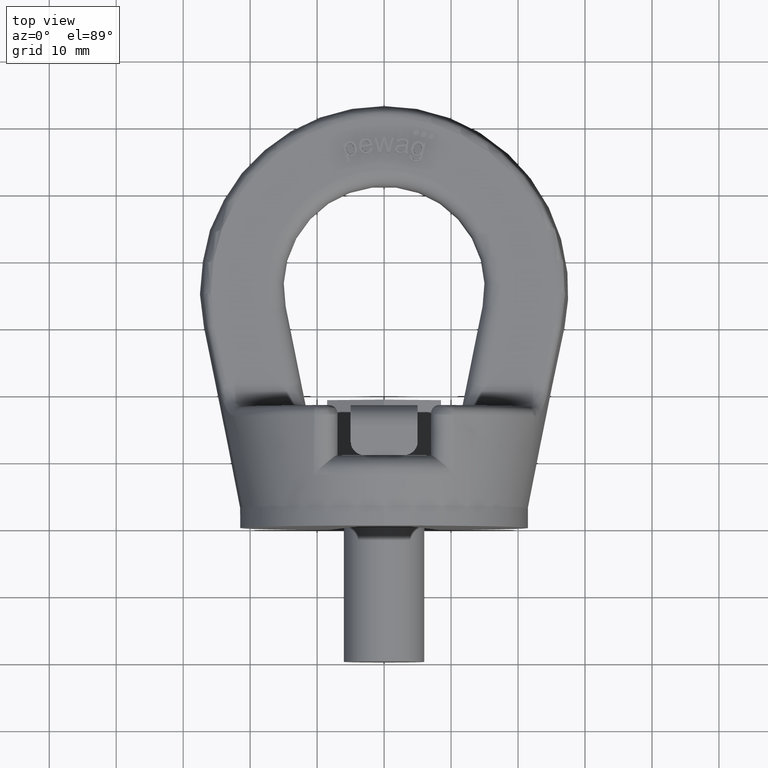
[diagram: clean part render]
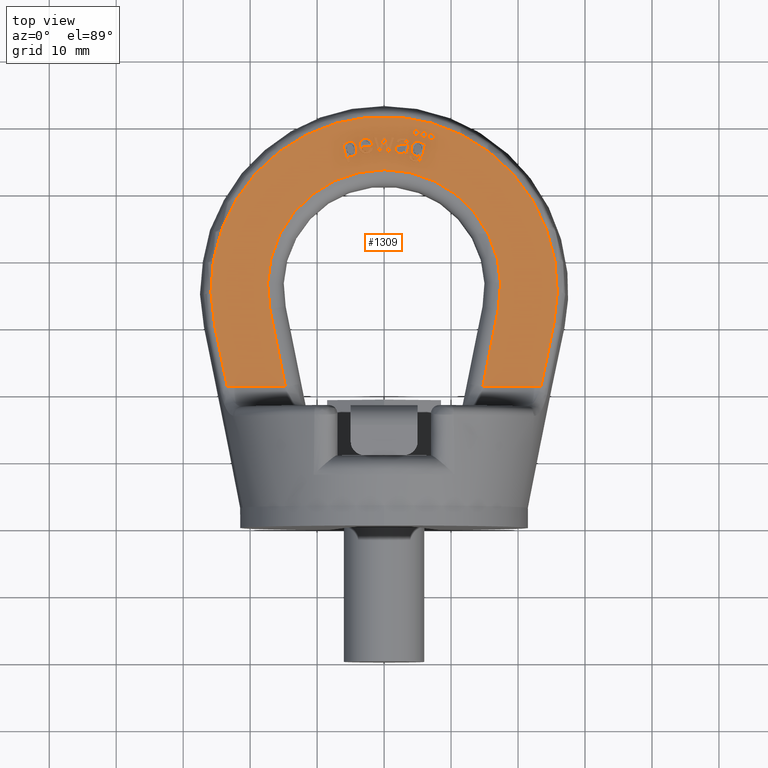
[diagram: same view with one face highlighted and labeled with its STEP entity id]
A machine part, top view. The second image highlights one B-rep face of the part: STEP entity #1309.
In plain terms, the highlighted planar face has unit normal (0, -0, -1).
Its self-contained STEP definition (entity closure, byte-faithful):
#1309=ADVANCED_FACE('',(#1756,#1757,#1758,#1759,#1760,#1761,#1762,#1763,
#1764),#1548,.F.);
#1548=PLANE('',#5122);
#1666=CIRCLE('',#5117,0.45);
#1667=CIRCLE('',#5118,0.45);
#1668=CIRCLE('',#5119,0.45);
#1669=CIRCLE('',#5120,17.4);
#1670=CIRCLE('',#5121,25.8582675367087);
#1756=FACE_BOUND('',#1812,.T.);
#1757=FACE_BOUND('',#1813,.T.);
#1758=FACE_BOUND('',#1814,.T.);
#1759=FACE_BOUND('',#1815,.T.);
#1760=FACE_BOUND('',#1816,.T.);
#1761=FACE_BOUND('',#1817,.T.);
#1762=FACE_BOUND('',#1818,.T.);
#1763=FACE_BOUND('',#1819,.T.);
#1764=FACE_BOUND('',#1820,.T.);
#1812=EDGE_LOOP('',(#2702,#2703,#2704,#2705,#2706,#2707,#2708));
#1813=EDGE_LOOP('',(#2709,#2710,#2711,#2712,#2713,#2714,#2715,#2716,#2717,
#2718,#2719,#2720,#2721,#2722,#2723));
#1814=EDGE_LOOP('',(#2724,#2725,#2726,#2727,#2728));
#1815=EDGE_LOOP('',(#2729));
#1816=EDGE_LOOP('',(#2730));
#1817=EDGE_LOOP('',(#2731));
#1818=EDGE_LOOP('',(#2732,#2733,#2734,#2735,#2736,#2737,#2738,#2739));
#1819=EDGE_LOOP('',(#2740,#2741,#2742,#2743,#2744,#2745));
#1820=EDGE_LOOP('',(#2746,#2747,#2748,#2749,#2750,#2751,#2752,#2753,#2754));
#2086=LINE('',#6270,#2366);
#2087=LINE('',#6302,#2367);
#2088=LINE('',#6304,#2368);
#2089=LINE('',#6305,#2369);
#2090=LINE('',#6308,#2370);
#2091=LINE('',#6310,#2371);
#2092=LINE('',#6312,#2372);
#2093=LINE('',#6326,#2373);
#2094=LINE('',#6328,#2374);
#2095=LINE('',#6344,#2375);
#2096=LINE('',#6346,#2376);
#2097=LINE('',#6348,#2377);
#2098=LINE('',#6350,#2378);
#2099=LINE('',#6352,#2379);
#2100=LINE('',#6368,#2380);
#2101=LINE('',#6391,#2381);
#2102=LINE('',#6401,#2382);
#2103=LINE('',#6403,#2383);
#2104=LINE('',#6417,#2384);
#2105=LINE('',#6419,#2385);
#2106=LINE('',#6420,#2386);
#2107=LINE('',#6423,#2387);
#2108=LINE('',#6425,#2388);
#2109=LINE('',#6427,#2389);
#2110=LINE('',#6429,#2390);
#2111=LINE('',#6453,#2391);
#2112=LINE('',#6498,#2392);
#2366=VECTOR('',#5384,1.);
#2367=VECTOR('',#5385,1.);
#2368=VECTOR('',#5386,1.);
#2369=VECTOR('',#5387,1.);
#2370=VECTOR('',#5388,1.);
#2371=VECTOR('',#5389,1.);
#2372=VECTOR('',#5390,1.);
#2373=VECTOR('',#5391,1.);
#2374=VECTOR('',#5392,1.);
#2375=VECTOR('',#5393,1.);
#2376=VECTOR('',#5394,1.);
#2377=VECTOR('',#5395,1.);
#2378=VECTOR('',#5396,1.);
#2379=VECTOR('',#5397,1.);
#2380=VECTOR('',#5398,1.);
#2381=VECTOR('',#5399,1.);
#2382=VECTOR('',#5408,1.);
#2383=VECTOR('',#5409,1.);
#2384=VECTOR('',#5412,1.);
#2385=VECTOR('',#5413,1.);
#2386=VECTOR('',#5414,1.);
#2387=VECTOR('',#5415,1.);
#2388=VECTOR('',#5416,1.);
#2389=VECTOR('',#5417,1.);
#2390=VECTOR('',#5418,1.);
#2391=VECTOR('',#5419,1.);
#2392=VECTOR('',#5420,1.);
#2702=ORIENTED_EDGE('',*,*,#4266,.T.);
#2703=ORIENTED_EDGE('',*,*,#4267,.T.);
#2704=ORIENTED_EDGE('',*,*,#4268,.T.);
#2705=ORIENTED_EDGE('',*,*,#4269,.T.);
#2706=ORIENTED_EDGE('',*,*,#4270,.T.);
#2707=ORIENTED_EDGE('',*,*,#4271,.T.);
#2708=ORIENTED_EDGE('',*,*,#4272,.T.);
#2709=ORIENTED_EDGE('',*,*,#4273,.T.);
#2710=ORIENTED_EDGE('',*,*,#4274,.T.);
#2711=ORIENTED_EDGE('',*,*,#4275,.T.);
#2712=ORIENTED_EDGE('',*,*,#4276,.T.);
#2713=ORIENTED_EDGE('',*,*,#4277,.T.);
#2714=ORIENTED_EDGE('',*,*,#4278,.T.);
#2715=ORIENTED_EDGE('',*,*,#4279,.T.);
#2716=ORIENTED_EDGE('',*,*,#4280,.T.);
#2717=ORIENTED_EDGE('',*,*,#4281,.T.);
#2718=ORIENTED_EDGE('',*,*,#4282,.T.);
#2719=ORIENTED_EDGE('',*,*,#4283,.T.);
#2720=ORIENTED_EDGE('',*,*,#4284,.T.);
#2721=ORIENTED_EDGE('',*,*,#4285,.T.);
#2722=ORIENTED_EDGE('',*,*,#4286,.T.);
#2723=ORIENTED_EDGE('',*,*,#4287,.T.);
#2724=ORIENTED_EDGE('',*,*,#4288,.T.);
#2725=ORIENTED_EDGE('',*,*,#4289,.T.);
#2726=ORIENTED_EDGE('',*,*,#4290,.T.);
#2727=ORIENTED_EDGE('',*,*,#4291,.T.);
#2728=ORIENTED_EDGE('',*,*,#4292,.T.);
#2729=ORIENTED_EDGE('',*,*,#4293,.F.);
#2730=ORIENTED_EDGE('',*,*,#4294,.F.);
#2731=ORIENTED_EDGE('',*,*,#4295,.F.);
#2732=ORIENTED_EDGE('',*,*,#4296,.T.);
#2733=ORIENTED_EDGE('',*,*,#4297,.T.);
#2734=ORIENTED_EDGE('',*,*,#4298,.T.);
#2735=ORIENTED_EDGE('',*,*,#4299,.T.);
#2736=ORIENTED_EDGE('',*,*,#4300,.T.);
#2737=ORIENTED_EDGE('',*,*,#4301,.T.);
#2738=ORIENTED_EDGE('',*,*,#4302,.T.);
#2739=ORIENTED_EDGE('',*,*,#4303,.T.);
#2740=ORIENTED_EDGE('',*,*,#4304,.T.);
#2741=ORIENTED_EDGE('',*,*,#4305,.T.);
#2742=ORIENTED_EDGE('',*,*,#4306,.T.);
#2743=ORIENTED_EDGE('',*,*,#4307,.T.);
#2744=ORIENTED_EDGE('',*,*,#4308,.T.);
#2745=ORIENTED_EDGE('',*,*,#4309,.T.);
#2746=ORIENTED_EDGE('',*,*,#4310,.T.);
#2747=ORIENTED_EDGE('',*,*,#4311,.T.);
#2748=ORIENTED_EDGE('',*,*,#4312,.T.);
#2749=ORIENTED_EDGE('',*,*,#4313,.T.);
#2750=ORIENTED_EDGE('',*,*,#4314,.T.);
#2751=ORIENTED_EDGE('',*,*,#4315,.T.);
#2752=ORIENTED_EDGE('',*,*,#4316,.T.);
#2753=ORIENTED_EDGE('',*,*,#4317,.T.);
#2754=ORIENTED_EDGE('',*,*,#4318,.T.);
#3878=VERTEX_POINT('',#6263);
#3879=VERTEX_POINT('',#6264);
#3880=VERTEX_POINT('',#6269);
#3881=VERTEX_POINT('',#6271);
#3882=VERTEX_POINT('',#6284);
#3883=VERTEX_POINT('',#6301);
#3884=VERTEX_POINT('',#6303);
#3885=VERTEX_POINT('',#6306);
#3886=VERTEX_POINT('',#6307);
#3887=VERTEX_POINT('',#6309);
#3888=VERTEX_POINT('',#6311);
#3889=VERTEX_POINT('',#6313);
#3890=VERTEX_POINT('',#6320);
#3891=VERTEX_POINT('',#6325);
#3892=VERTEX_POINT('',#6327);
#3893=VERTEX_POINT('',#6329);
#3894=VERTEX_POINT('',#6336);
#3895=VERTEX_POINT('',#6343);
#3896=VERTEX_POINT('',#6345);
#3897=VERTEX_POINT('',#6347);
#3898=VERTEX_POINT('',#6349);
#3899=VERTEX_POINT('',#6351);
#3900=VERTEX_POINT('',#6361);
#3901=VERTEX_POINT('',#6362);
#3902=VERTEX_POINT('',#6367);
#3903=VERTEX_POINT('',#6369);
#3904=VERTEX_POINT('',#6390);
#3905=VERTEX_POINT('',#6393);
#3906=VERTEX_POINT('',#6395);
#3907=VERTEX_POINT('',#6397);
#3908=VERTEX_POINT('',#6399);
#3909=VERTEX_POINT('',#6400);
#3910=VERTEX_POINT('',#6402);
#3911=VERTEX_POINT('',#6404);
#3912=VERTEX_POINT('',#6409);
#3913=VERTEX_POINT('',#6411);
#3914=VERTEX_POINT('',#6416);
#3915=VERTEX_POINT('',#6418);
#3916=VERTEX_POINT('',#6421);
#3917=VERTEX_POINT('',#6422);
#3918=VERTEX_POINT('',#6424);
#3919=VERTEX_POINT('',#6426);
#3920=VERTEX_POINT('',#6428);
#3921=VERTEX_POINT('',#6430);
#3922=VERTEX_POINT('',#6454);
#3923=VERTEX_POINT('',#6455);
#3924=VERTEX_POINT('',#6460);
#3925=VERTEX_POINT('',#6477);
#3926=VERTEX_POINT('',#6484);
#3927=VERTEX_POINT('',#6497);
#3928=VERTEX_POINT('',#6499);
#3929=VERTEX_POINT('',#6504);
#3930=VERTEX_POINT('',#6517);
#4266=EDGE_CURVE('',#3878,#3879,#4854,.T.);
#4267=EDGE_CURVE('',#3879,#3880,#4855,.T.);
#4268=EDGE_CURVE('',#3880,#3881,#2086,.T.);
#4269=EDGE_CURVE('',#3881,#3882,#4856,.T.);
#4270=EDGE_CURVE('',#3882,#3883,#4857,.T.);
#4271=EDGE_CURVE('',#3883,#3884,#2087,.T.);
#4272=EDGE_CURVE('',#3884,#3878,#2088,.T.);
#4273=EDGE_CURVE('',#3885,#3886,#2089,.T.);
#4274=EDGE_CURVE('',#3886,#3887,#2090,.T.);
#4275=EDGE_CURVE('',#3887,#3888,#2091,.T.);
#4276=EDGE_CURVE('',#3888,#3889,#2092,.T.);
#4277=EDGE_CURVE('',#3889,#3890,#4858,.T.);
#4278=EDGE_CURVE('',#3890,#3891,#4859,.T.);
#4279=EDGE_CURVE('',#3891,#3892,#2093,.T.);
#4280=EDGE_CURVE('',#3892,#3893,#2094,.T.);
#4281=EDGE_CURVE('',#3893,#3894,#4860,.T.);
#4282=EDGE_CURVE('',#3894,#3895,#4861,.T.);
#4283=EDGE_CURVE('',#3895,#3896,#2095,.T.);
#4284=EDGE_CURVE('',#3896,#3897,#2096,.T.);
#4285=EDGE_CURVE('',#3897,#3898,#2097,.T.);
#4286=EDGE_CURVE('',#3898,#3899,#2098,.T.);
#4287=EDGE_CURVE('',#3899,#3885,#2099,.T.);
#4288=EDGE_CURVE('',#3900,#3901,#4862,.T.);
#4289=EDGE_CURVE('',#3901,#3902,#4863,.T.);
#4290=EDGE_CURVE('',#3902,#3903,#2100,.T.);
#4291=EDGE_CURVE('',#3903,#3904,#4864,.T.);
#4292=EDGE_CURVE('',#3904,#3900,#2101,.T.);
#4293=EDGE_CURVE('',#3905,#3905,#1666,.T.);
#4294=EDGE_CURVE('',#3906,#3906,#1667,.T.);
#4295=EDGE_CURVE('',#3907,#3907,#1668,.T.);
#4296=EDGE_CURVE('',#3908,#3909,#1669,.T.);
#4297=EDGE_CURVE('',#3909,#3910,#2102,.T.);
#4298=EDGE_CURVE('',#3910,#3911,#2103,.T.);
#4299=EDGE_CURVE('',#3911,#3912,#4865,.T.);
#4300=EDGE_CURVE('',#3912,#3913,#1670,.T.);
#4301=EDGE_CURVE('',#3913,#3914,#4866,.T.);
#4302=EDGE_CURVE('',#3914,#3915,#2104,.T.);
#4303=EDGE_CURVE('',#3915,#3908,#2105,.T.);
#4304=EDGE_CURVE('',#3916,#3917,#2106,.T.);
#4305=EDGE_CURVE('',#3917,#3918,#2107,.T.);
#4306=EDGE_CURVE('',#3918,#3919,#2108,.T.);
#4307=EDGE_CURVE('',#3919,#3920,#2109,.T.);
#4308=EDGE_CURVE('',#3920,#3921,#2110,.T.);
#4309=EDGE_CURVE('',#3921,#3916,#4867,.T.);
#4310=EDGE_CURVE('',#3922,#3923,#2111,.T.);
#4311=EDGE_CURVE('',#3923,#3924,#4868,.T.);
#4312=EDGE_CURVE('',#3924,#3925,#4869,.T.);
#4313=EDGE_CURVE('',#3925,#3926,#4870,.T.);
#4314=EDGE_CURVE('',#3926,#3927,#4871,.T.);
#4315=EDGE_CURVE('',#3927,#3928,#2112,.T.);
#4316=EDGE_CURVE('',#3928,#3929,#4872,.T.);
#4317=EDGE_CURVE('',#3929,#3930,#4873,.T.);
#4318=EDGE_CURVE('',#3930,#3922,#4874,.T.);
#4854=B_SPLINE_CURVE_WITH_KNOTS('',3,(#6251,#6252,#6253,#6254,#6255,#6256,
#6257,#6258,#6259,#6260,#6261,#6262),.UNSPECIFIED.,.F.,.F.,(4,2,2,2,2,4),
(0.,0.305645754892092,0.470829306249214,0.636012857606336,0.802206343843957,
1.),.UNSPECIFIED.);
#4855=B_SPLINE_CURVE_WITH_KNOTS('',3,(#6265,#6266,#6267,#6268),
 .UNSPECIFIED.,.F.,.F.,(4,4),(0.,1.),.UNSPECIFIED.);
#4856=B_SPLINE_CURVE_WITH_KNOTS('',3,(#6272,#6273,#6274,#6275,#6276,#6277,
#6278,#6279,#6280,#6281,#6282,#6283),.UNSPECIFIED.,.F.,.F.,(4,2,2,2,2,4),
(0.,0.163304651309289,0.382303784248535,0.619375661168201,0.856447538087868,
1.),.UNSPECIFIED.);
#4857=B_SPLINE_CURVE_WITH_KNOTS('',3,(#6285,#6286,#6287,#6288,#6289,#6290,
#6291,#6292,#6293,#6294,#6295,#6296,#6297,#6298,#6299,#6300),
 .UNSPECIFIED.,.F.,.F.,(4,2,2,2,2,2,2,4),(0.,0.139503666745452,0.312880428291713,
0.486257189837975,0.605370995480445,0.723854105689066,0.842337215897688,
1.),.UNSPECIFIED.);
#4858=B_SPLINE_CURVE_WITH_KNOTS('',3,(#6314,#6315,#6316,#6317,#6318,#6319),
 .UNSPECIFIED.,.F.,.F.,(4,2,4),(0.,0.728909607654982,1.),.UNSPECIFIED.);
#4859=B_SPLINE_CURVE_WITH_KNOTS('',3,(#6321,#6322,#6323,#6324),
 .UNSPECIFIED.,.F.,.F.,(4,4),(0.,1.),.UNSPECIFIED.);
#4860=B_SPLINE_CURVE_WITH_KNOTS('',3,(#6330,#6331,#6332,#6333,#6334,#6335),
 .UNSPECIFIED.,.F.,.F.,(4,2,4),(0.,0.752082276025114,1.),.UNSPECIFIED.);
#4861=B_SPLINE_CURVE_WITH_KNOTS('',3,(#6337,#6338,#6339,#6340,#6341,#6342),
 .UNSPECIFIED.,.F.,.F.,(4,2,4),(0.,0.250451922487264,1.),.UNSPECIFIED.);
#4862=B_SPLINE_CURVE_WITH_KNOTS('',3,(#6353,#6354,#6355,#6356,#6357,#6358,
#6359,#6360),.UNSPECIFIED.,.F.,.F.,(4,2,2,4),(0.,0.363477968613209,0.728087675912439,
1.),.UNSPECIFIED.);
#4863=B_SPLINE_CURVE_WITH_KNOTS('',3,(#6363,#6364,#6365,#6366),
 .UNSPECIFIED.,.F.,.F.,(4,4),(0.,1.),.UNSPECIFIED.);
#4864=B_SPLINE_CURVE_WITH_KNOTS('',3,(#6370,#6371,#6372,#6373,#6374,#6375,
#6376,#6377,#6378,#6379,#6380,#6381,#6382,#6383,#6384,#6385,#6386,#6387,
#6388,#6389),.UNSPECIFIED.,.F.,.F.,(4,2,2,2,2,2,2,2,2,4),(0.,0.10292120312204,
0.206156274885327,0.336063021724233,0.465707475917735,0.599570296299742,
0.73343311668175,0.862845255056171,0.992257393430589,1.),.UNSPECIFIED.);
#4865=B_SPLINE_CURVE_WITH_KNOTS('',3,(#6405,#6406,#6407,#6408),
 .UNSPECIFIED.,.F.,.F.,(4,4),(0.,1.),.UNSPECIFIED.);
#4866=B_SPLINE_CURVE_WITH_KNOTS('',3,(#6412,#6413,#6414,#6415),
 .UNSPECIFIED.,.F.,.F.,(4,4),(0.,1.),.UNSPECIFIED.);
#4867=B_SPLINE_CURVE_WITH_KNOTS('',3,(#6431,#6432,#6433,#6434,#6435,#6436,
#6437,#6438,#6439,#6440,#6441,#6442,#6443,#6444,#6445,#6446,#6447,#6448,
#6449,#6450,#6451,#6452),.UNSPECIFIED.,.F.,.F.,(4,2,2,2,2,2,2,2,2,2,4),
(0.,0.0830854503763804,0.165678296755062,0.273272220956482,0.380460889370505,
0.487248686046665,0.601946689884026,0.717055250849185,0.831909514623418,
0.915821305508701,1.),.UNSPECIFIED.);
#4868=B_SPLINE_CURVE_WITH_KNOTS('',3,(#6456,#6457,#6458,#6459),
 .UNSPECIFIED.,.F.,.F.,(4,4),(0.,1.),.UNSPECIFIED.);
#4869=B_SPLINE_CURVE_WITH_KNOTS('',3,(#6461,#6462,#6463,#6464,#6465,#6466,
#6467,#6468,#6469,#6470,#6471,#6472,#6473,#6474,#6475,#6476),
 .UNSPECIFIED.,.F.,.F.,(4,2,2,2,2,2,2,4),(0.,0.121639465164569,0.243930904991202,
0.445161792748253,0.646392680505297,0.763565096161289,0.881519242448378,
1.),.UNSPECIFIED.);
#4870=B_SPLINE_CURVE_WITH_KNOTS('',3,(#6478,#6479,#6480,#6481,#6482,#6483),
 .UNSPECIFIED.,.F.,.F.,(4,2,4),(0.,0.329344693449402,1.),.UNSPECIFIED.);
#4871=B_SPLINE_CURVE_WITH_KNOTS('',3,(#6485,#6486,#6487,#6488,#6489,#6490,
#6491,#6492,#6493,#6494,#6495,#6496),.UNSPECIFIED.,.F.,.F.,(4,2,2,2,2,4),
(0.,0.0173977322142893,0.217983350684955,0.490675035316424,0.745337517658206,
1.),.UNSPECIFIED.);
#4872=B_SPLINE_CURVE_WITH_KNOTS('',3,(#6500,#6501,#6502,#6503),
 .UNSPECIFIED.,.F.,.F.,(4,4),(0.,1.),.UNSPECIFIED.);
#4873=B_SPLINE_CURVE_WITH_KNOTS('',3,(#6505,#6506,#6507,#6508,#6509,#6510,
#6511,#6512,#6513,#6514,#6515,#6516),.UNSPECIFIED.,.F.,.F.,(4,2,2,2,2,4),
(0.,0.201730292707491,0.402155128097314,0.601755169925863,0.80019954507805,
1.),.UNSPECIFIED.);
#4874=B_SPLINE_CURVE_WITH_KNOTS('',3,(#6518,#6519,#6520,#6521,#6522,#6523,
#6524,#6525,#6526,#6527),.UNSPECIFIED.,.F.,.F.,(4,2,2,2,4),(0.,0.161403604805117,
0.323059797411177,0.661780038481078,1.),.UNSPECIFIED.);
#5117=AXIS2_PLACEMENT_3D('',#6392,#5400,#5401);
#5118=AXIS2_PLACEMENT_3D('',#6394,#5402,#5403);
#5119=AXIS2_PLACEMENT_3D('',#6396,#5404,#5405);
#5120=AXIS2_PLACEMENT_3D('',#6398,#5406,#5407);
#5121=AXIS2_PLACEMENT_3D('',#6410,#5410,#5411);
#5122=AXIS2_PLACEMENT_3D('',#6528,#5421,#5422);
#5384=DIRECTION('',(0.926036898244068,-0.377432991523669,5.9521988273115E-17));
#5385=DIRECTION('',(0.240441711768674,0.970663578816961,-1.5307571794995E-16));
#5386=DIRECTION('',(0.97066357881696,-0.240441711768677,3.7918171091743E-17));
#5387=DIRECTION('',(-0.258675883018079,-0.965964175083536,1.52334611951817E-16));
#5388=DIRECTION('',(-0.999999995678886,9.29635859875706E-5,-1.46605559112388E-20));
#5389=DIRECTION('',(-0.297319028478967,0.954778191678215,-1.50570558495899E-16));
#5390=DIRECTION('',(0.999999995678886,-9.29635860091688E-5,1.46605559146449E-20));
#5391=DIRECTION('',(0.26668775938768,0.963782983348834,-1.51990633360199E-16));
#5392=DIRECTION('',(0.999999995678886,-9.29635860151283E-5,1.46605559155848E-20));
#5393=DIRECTION('',(0.999999995678886,-9.29635860255876E-5,1.46605559172342E-20));
#5394=DIRECTION('',(-0.303109223404765,-0.952955822001713,1.5028316690865E-16));
#5395=DIRECTION('',(-0.999999995678886,9.29635860388954E-5,-1.46605559193329E-20));
#5396=DIRECTION('',(-0.260553429481473,0.965459429694196,-1.522550125267E-16));
#5397=DIRECTION('',(-0.226101851815542,0.974103666251997,-1.5361822708022E-16));
#5398=DIRECTION('',(0.99995564898741,0.00941807083053112,-1.48524986983043E-18));
#5399=DIRECTION('',(-0.991600377783164,-0.129339440157622,2.03971057464658E-17));
#5400=DIRECTION('',(0.,1.5770213417971E-16,1.));
#5401=DIRECTION('',(0.,0.999999999999997,0.));
#5402=DIRECTION('',(0.,1.5770213417971E-16,1.));
#5403=DIRECTION('',(0.,0.999999999999997,0.));
#5404=DIRECTION('',(0.,1.5770213417971E-16,1.));
#5405=DIRECTION('',(0.,0.999999999999997,0.));
#5406=DIRECTION('',(0.,-1.5770213417971E-16,-1.));
#5407=DIRECTION('',(0.,1.,-1.4954512723938E-16));
#5408=DIRECTION('',(-0.19766821154562,-0.980268982547319,1.54590510617885E-16));
#5409=DIRECTION('',(1.,1.4851200490521E-15,-2.34206601248592E-31));
#5410=DIRECTION('',(0.,1.5770213417971E-16,1.));
#5411=DIRECTION('',(0.,1.,-1.67714588140348E-16));
#5412=DIRECTION('',(1.,-1.4851200490521E-15,2.34206601248592E-31));
#5413=DIRECTION('',(-0.19766821154562,0.980268982547319,-1.54590510617885E-16));
#5414=DIRECTION('',(0.240261234879321,-0.970708266686889,1.53082765322409E-16));
#5415=DIRECTION('',(-0.970708266686887,-0.240261234879327,3.78897095011224E-17));
#5416=DIRECTION('',(-0.24026123487932,0.970708266686889,-1.53082765322409E-16));
#5417=DIRECTION('',(0.970708266686888,0.240261234879323,-3.78897095011217E-17));
#5418=DIRECTION('',(0.240261234879318,-0.97070826668689,1.53082765322409E-16));
#5419=DIRECTION('',(-0.99157631292765,0.129523803375314,-2.04261802193602E-17));
#5420=DIRECTION('',(-0.965560779386236,0.260177595713091,-4.10305621097002E-17));
#5421=DIRECTION('',(0.,-1.5770213417971E-16,-1.));
#5422=DIRECTION('',(0.,1.,-1.57859836313889E-16));
#6251=CARTESIAN_POINT('',(6.20575754336817,57.3063757401386,6.));
#6252=CARTESIAN_POINT('',(6.05518161335801,56.6985004674489,6.));
#6253=CARTESIAN_POINT('',(5.90460568334785,56.0906251947592,6.));
#6254=CARTESIAN_POINT('',(5.67265232057485,55.1542290945497,6.));
#6255=CARTESIAN_POINT('',(5.5809698240465,54.9302553745608,6.));
#6256=CARTESIAN_POINT('',(5.37662564480681,54.6899122592701,6.));
#6257=CARTESIAN_POINT('',(5.2420504243621,54.6078121137664,6.));
#6258=CARTESIAN_POINT('',(4.90781318724154,54.5224743446232,6.));
#6259=CARTESIAN_POINT('',(4.71619275367271,54.5277574319655,6.));
#6260=CARTESIAN_POINT('',(4.24472578209141,54.6445438532996,6.));
#6261=CARTESIAN_POINT('',(4.0518199735008,54.7524180364342,6.));
#6262=CARTESIAN_POINT('',(3.92220745020137,54.904703685001,6.));
#6263=CARTESIAN_POINT('',(6.20575754336817,57.3063757401386,6.));
#6264=CARTESIAN_POINT('',(3.92220745020137,54.904703685001,6.));
#6265=CARTESIAN_POINT('',(3.92220745020137,54.904703685001,6.));
#6266=CARTESIAN_POINT('',(3.79259492690195,55.0569893335678,6.));
#6267=CARTESIAN_POINT('',(3.75905359406857,55.2463577334012,6.));
#6268=CARTESIAN_POINT('',(3.82064093689039,55.4722516988339,6.));
#6269=CARTESIAN_POINT('',(3.82064093689039,55.4722516988339,6.));
#6270=CARTESIAN_POINT('',(41.5829666251612,40.0811289709589,6.00000000000001));
#6271=CARTESIAN_POINT('',(4.16188763482528,55.3331667851621,6.));
#6272=CARTESIAN_POINT('',(4.16188763482528,55.3331667851621,6.));
#6273=CARTESIAN_POINT('',(4.1497171360946,55.2223272473401,6.));
#6274=CARTESIAN_POINT('',(4.17127277304765,55.1339689886218,6.));
#6275=CARTESIAN_POINT('',(4.30068997402487,54.9797479153109,6.));
#6276=CARTESIAN_POINT('',(4.41576405205717,54.9160661145281,6.));
#6277=CARTESIAN_POINT('',(4.74093982506099,54.8355172805211,6.));
#6278=CARTESIAN_POINT('',(4.87867463331529,54.8361879908635,6.));
#6279=CARTESIAN_POINT('',(5.0949533406775,54.923350430372,6.));
#6280=CARTESIAN_POINT('',(5.18017431618492,55.0010722981359,6.));
#6281=CARTESIAN_POINT('',(5.2786893367955,55.1797755599088,6.));
#6282=CARTESIAN_POINT('',(5.32549224742334,55.3311489177058,6.));
#6283=CARTESIAN_POINT('',(5.38173395548938,55.5646922803139,6.));
#6284=CARTESIAN_POINT('',(5.38173395548938,55.5646922803139,6.));
#6285=CARTESIAN_POINT('',(5.38173395548938,55.5646922803139,6.));
#6286=CARTESIAN_POINT('',(5.1767937308231,55.4193753730725,6.));
#6287=CARTESIAN_POINT('',(4.95626241217821,55.3767523497323,6.));
#6288=CARTESIAN_POINT('',(4.42415660180832,55.5085595326528,6.));
#6289=CARTESIAN_POINT('',(4.22107909102038,55.6695552338382,6.));
#6290=CARTESIAN_POINT('',(4.00188275567911,56.1681999844469,6.));
#6291=CARTESIAN_POINT('',(3.98296469165896,56.439336781128,6.));
#6292=CARTESIAN_POINT('',(4.10530763479221,56.9332354401884,6.));
#6293=CARTESIAN_POINT('',(4.18839672572244,57.1095265753096,6.));
#6294=CARTESIAN_POINT('',(4.42085924575848,57.4131047639506,6.));
#6295=CARTESIAN_POINT('',(4.56082942679884,57.5185468657608,6.));
#6296=CARTESIAN_POINT('',(4.88856330001202,57.6334467307898,6.));
#6297=CARTESIAN_POINT('',(5.06542948324848,57.6394467022555,6.));
#6298=CARTESIAN_POINT('',(5.50885099189005,57.5296073831551,6.));
#6299=CARTESIAN_POINT('',(5.6923855412168,57.3774059149407,6.));
#6300=CARTESIAN_POINT('',(5.80686094408679,57.1347819534282,6.));
#6301=CARTESIAN_POINT('',(5.80686094408679,57.1347819534282,6.));
#6302=CARTESIAN_POINT('',(12.3535770690584,83.5638855254299,6.));
#6303=CARTESIAN_POINT('',(5.86996997357634,57.3895532074231,6.));
#6304=CARTESIAN_POINT('',(48.5163929045178,46.8256676819932,6.));
#6305=CARTESIAN_POINT('',(7.50132722587884,85.7196861322213,6.));
#6306=CARTESIAN_POINT('',(-0.00969874891857249,57.6715282400953,6.));
#6307=CARTESIAN_POINT('',(-0.4573064710731,56.0000425992719,6.));
#6308=CARTESIAN_POINT('',(54.9984191437305,55.994887236133,6.));
#6309=CARTESIAN_POINT('',(-0.848534425392187,56.0000789692257,6.));
#6310=CARTESIAN_POINT('',(-0.737432804766257,55.6432992334099,6.));
#6311=CARTESIAN_POINT('',(-1.52536757645237,58.1735877935451,6.));
#6312=CARTESIAN_POINT('',(54.9986211950545,58.1683331208306,6.));
#6313=CARTESIAN_POINT('',(-1.13804409273526,58.1735517865649,6.));
#6314=CARTESIAN_POINT('',(-1.13804409273526,58.1735517865649,6.));
#6315=CARTESIAN_POINT('',(-1.02068856010013,57.7552753339073,6.));
#6316=CARTESIAN_POINT('',(-0.903333027465002,57.3369988812496,6.));
#6317=CARTESIAN_POINT('',(-0.742331537839034,56.7631603033725,6.));
#6318=CARTESIAN_POINT('',(-0.69854627217898,56.607637297537,6.));
#6319=CARTESIAN_POINT('',(-0.654830660853536,56.4520947320095,6.));
#6320=CARTESIAN_POINT('',(-0.654830660853536,56.4520947320095,6.));
#6321=CARTESIAN_POINT('',(-0.654830660853536,56.4520947320095,6.));
#6322=CARTESIAN_POINT('',(-0.649362261636555,56.4751180149979,6.));
#6323=CARTESIAN_POINT('',(-0.611084537304792,56.6247691003413,6.));
#6324=CARTESIAN_POINT('',(-0.54077845332445,56.9002806009293,6.));
#6325=CARTESIAN_POINT('',(-0.54077845332445,56.9002806009293,6.));
#6326=CARTESIAN_POINT('',(7.54750962212476,86.130547597208,6.));
#6327=CARTESIAN_POINT('',(-0.188476842332043,58.1734635113878,6.));
#6328=CARTESIAN_POINT('',(54.9986211950544,58.1683331208303,6.));
#6329=CARTESIAN_POINT('',(0.196503959023868,58.1734277221918,6.));
#6330=CARTESIAN_POINT('',(0.196503959023868,58.1734277221918,6.));
#6331=CARTESIAN_POINT('',(0.306831254319939,57.7531053636731,6.));
#6332=CARTESIAN_POINT('',(0.417158549616009,57.3327830051544,6.));
#6333=CARTESIAN_POINT('',(0.56385432853952,56.773904845254,6.));
#6334=CARTESIAN_POINT('',(0.601384756255444,56.6356566407148,6.));
#6335=CARTESIAN_POINT('',(0.638334211927126,56.4972546377543,6.));
#6336=CARTESIAN_POINT('',(0.638334211927126,56.4972546377543,6.));
#6337=CARTESIAN_POINT('',(0.638334211927126,56.4972546377543,6.));
#6338=CARTESIAN_POINT('',(0.680515503147326,56.6371842038601,6.));
#6339=CARTESIAN_POINT('',(0.722696794367525,56.7771137699659,6.));
#6340=CARTESIAN_POINT('',(0.891117506819213,57.3358220630234,6.));
#6341=CARTESIAN_POINT('',(1.01744504657317,57.7545742218898,6.));
#6342=CARTESIAN_POINT('',(1.1437285270659,58.1733396647988,6.));
#6343=CARTESIAN_POINT('',(1.1437285270659,58.1733396647988,6.));
#6344=CARTESIAN_POINT('',(54.9986211950542,58.1683331208297,6.));
#6345=CARTESIAN_POINT('',(1.50840608129148,58.1733057630654,6.));
#6346=CARTESIAN_POINT('',(10.7056432107963,87.0888252924331,6.));
#6347=CARTESIAN_POINT('',(0.817112733415437,55.9999241246921,6.));
#6348=CARTESIAN_POINT('',(54.9984191437296,55.9948872361301,6.));
#6349=CARTESIAN_POINT('',(0.427446567337142,55.9999603494564,6.));
#6350=CARTESIAN_POINT('',(-0.144151021319441,58.1179684795248,6.));
#6351=CARTESIAN_POINT('',(0.0761652156463484,57.3016046768427,6.));
#6352=CARTESIAN_POINT('',(-0.57353476669561,60.1006756693238,6.));
#6353=CARTESIAN_POINT('',(-3.35202607716547,56.7329249638484,6.));
#6354=CARTESIAN_POINT('',(-3.30721731521263,56.4980678234778,6.));
#6355=CARTESIAN_POINT('',(-3.21545129474865,56.3258346853053,6.));
#6356=CARTESIAN_POINT('',(-2.93757280277486,56.1062751302244,6.));
#6357=CARTESIAN_POINT('',(-2.77644761183763,56.0634503873468,6.));
#6358=CARTESIAN_POINT('',(-2.45742162968367,56.1050625557687,6.));
#6359=CARTESIAN_POINT('',(-2.34583748267765,56.1552192305778,6.));
#6360=CARTESIAN_POINT('',(-2.25817779759022,56.2378575086575,6.));
#6361=CARTESIAN_POINT('',(-3.35202607716547,56.7329249638484,6.));
#6362=CARTESIAN_POINT('',(-2.25817779759022,56.2378575086575,6.));
#6363=CARTESIAN_POINT('',(-2.25817779759022,56.2378575086575,6.));
#6364=CARTESIAN_POINT('',(-2.17139171021996,56.3211557996652,6.));
#6365=CARTESIAN_POINT('',(-2.10932418724049,56.4430238006375,6.));
#6366=CARTESIAN_POINT('',(-2.07294808917799,56.6048825378392,6.));
#6367=CARTESIAN_POINT('',(-2.07294808917799,56.6048825378392,6.));
#6368=CARTESIAN_POINT('',(55.1493411554615,57.1438300138967,6.));
#6369=CARTESIAN_POINT('',(-1.68282294338977,56.6085569270579,6.));
#6370=CARTESIAN_POINT('',(-1.68282294338977,56.6085569270579,6.));
#6371=CARTESIAN_POINT('',(-1.71520918651607,56.3798840271064,6.));
#6372=CARTESIAN_POINT('',(-1.80515361616619,56.1940109670633,6.));
#6373=CARTESIAN_POINT('',(-2.10060867269326,55.907428210507,6.));
#6374=CARTESIAN_POINT('',(-2.30206258389828,55.8196123490718,6.));
#6375=CARTESIAN_POINT('',(-2.87739342064681,55.74456904534,6.));
#6376=CARTESIAN_POINT('',(-3.14398164726295,55.8080896050236,6.));
#6377=CARTESIAN_POINT('',(-3.57069974563824,56.1482984325685,6.));
#6378=CARTESIAN_POINT('',(-3.70016305473674,56.4073419331851,6.));
#6379=CARTESIAN_POINT('',(-3.79317230679176,57.1204114297183,6.));
#6380=CARTESIAN_POINT('',(-3.73465635242915,57.4144094145965,6.));
#6381=CARTESIAN_POINT('',(-3.40744448498657,57.8641926300338,6.));
#6382=CARTESIAN_POINT('',(-3.17353434008079,57.9968655208889,6.));
#6383=CARTESIAN_POINT('',(-2.5780707957206,58.0745348352492,6.));
#6384=CARTESIAN_POINT('',(-2.32522207183296,58.0076742415339,6.));
#6385=CARTESIAN_POINT('',(-1.90232170646931,57.6634715559914,6.));
#6386=CARTESIAN_POINT('',(-1.77346838062591,57.4001047771434,6.));
#6387=CARTESIAN_POINT('',(-1.72423402735026,57.0226421621162,6.));
#6388=CARTESIAN_POINT('',(-1.72074006147039,56.9898175882272,6.));
#6389=CARTESIAN_POINT('',(-1.71663075117233,56.946237827215,6.));
#6390=CARTESIAN_POINT('',(-1.71663075117233,56.946237827215,6.));
#6391=CARTESIAN_POINT('',(56.1101487875991,64.4888764336904,6.));
#6392=CARTESIAN_POINT('',(4.78698557238327,58.9051253899601,6.));
#6393=CARTESIAN_POINT('',(4.78698557238327,59.3551253899601,6.));
#6394=CARTESIAN_POINT('',(5.92590016139337,58.6372195129437,6.));
#6395=CARTESIAN_POINT('',(5.92590016139337,59.0872195129437,6.));
#6396=CARTESIAN_POINT('',(7.05,58.3127205871449,6.));
#6397=CARTESIAN_POINT('',(7.05,58.7627205871449,6.));
#6398=CARTESIAN_POINT('',(0.,36.,6.00000000000001));
#6399=CARTESIAN_POINT('',(-17.0566802963234,32.5605731191062,6.00000000000001));
#6400=CARTESIAN_POINT('',(17.0566802963233,32.5605731191062,6.00000000000001));
#6401=CARTESIAN_POINT('',(14.6298644042528,20.5255962922905,6.00000000000001));
#6402=CARTESIAN_POINT('',(14.7255264461241,21.,6.00000000000001));
#6403=CARTESIAN_POINT('',(55.0000000000001,21.0000000000001,6.00000000000001));
#6404=CARTESIAN_POINT('',(23.4186353164931,21.,6.00000000000001));
#6405=CARTESIAN_POINT('',(23.4186353164931,21.,6.00000000000001));
#6406=CARTESIAN_POINT('',(24.0567876845232,24.1002501434545,6.00000000000001));
#6407=CARTESIAN_POINT('',(24.6939369652983,27.2007068643957,6.00000000000001));
#6408=CARTESIAN_POINT('',(25.3302938991965,30.3013260363502,6.00000000000001));
#6409=CARTESIAN_POINT('',(25.3302938991965,30.3013260363502,6.00000000000001));
#6410=CARTESIAN_POINT('',(-1.38050658413677E-30,35.5,6.00000000000001));
#6411=CARTESIAN_POINT('',(-25.3302938991965,30.3013260363503,6.00000000000001));
#6412=CARTESIAN_POINT('',(-25.3302938991965,30.3013260363503,6.00000000000001));
#6413=CARTESIAN_POINT('',(-24.6939369652983,27.2007068643958,6.00000000000001));
#6414=CARTESIAN_POINT('',(-24.0567876845234,24.1002501434546,6.00000000000001));
#6415=CARTESIAN_POINT('',(-23.4186353164932,21.,6.00000000000001));
#6416=CARTESIAN_POINT('',(-23.4186353164932,21.,6.00000000000001));
#6417=CARTESIAN_POINT('',(54.9999999999999,20.9999999999999,6.00000000000001));
#6418=CARTESIAN_POINT('',(-14.7255264461241,21.,6.00000000000001));
#6419=CARTESIAN_POINT('',(-17.0566802963234,32.5605731191062,6.00000000000001));
#6420=CARTESIAN_POINT('',(-5.96868844841712,57.9095625551995,6.));
#6421=CARTESIAN_POINT('',(-5.37356803578884,55.5051451114011,6.));
#6422=CARTESIAN_POINT('',(-5.11947748961562,54.4785633834697,6.));
#6423=CARTESIAN_POINT('',(55.8492109588014,69.5690008282707,6.));
#6424=CARTESIAN_POINT('',(-5.48332727266479,54.3885064619558,6.));
#6425=CARTESIAN_POINT('',(-6.33253823146631,57.8195056336856,6.));
#6426=CARTESIAN_POINT('',(-6.20558610384076,57.3065910978825,6.));
#6427=CARTESIAN_POINT('',(55.1269521276255,72.4870854641971,6.));
#6428=CARTESIAN_POINT('',(-5.87433119718975,57.3885804201775,6.));
#6429=CARTESIAN_POINT('',(-6.00128332481532,57.9014949559807,6.));
#6430=CARTESIAN_POINT('',(-5.80647537644103,57.1144279703381,6.));
#6431=CARTESIAN_POINT('',(-5.80647537644103,57.1144279703381,6.));
#6432=CARTESIAN_POINT('',(-5.75495155484601,57.2410297303356,6.));
#6433=CARTESIAN_POINT('',(-5.68617737849099,57.3434388891467,6.));
#6434=CARTESIAN_POINT('',(-5.51614989227521,57.4990341426942,6.));
#6435=CARTESIAN_POINT('',(-5.40327322657239,57.5557721466986,6.));
#6436=CARTESIAN_POINT('',(-5.08035654411625,57.6356976645422,6.));
#6437=CARTESIAN_POINT('',(-4.90652356101996,57.6289143346052,6.));
#6438=CARTESIAN_POINT('',(-4.58094141169125,57.5137955080985,6.));
#6439=CARTESIAN_POINT('',(-4.44250948039674,57.4085408942253,6.));
#6440=CARTESIAN_POINT('',(-4.21671123678243,57.1061589969592,6.));
#6441=CARTESIAN_POINT('',(-4.13417431668669,56.9298432833883,6.));
#6442=CARTESIAN_POINT('',(-4.03091545902558,56.5126547727631,6.));
#6443=CARTESIAN_POINT('',(-4.02220651555314,56.308458961135,6.));
#6444=CARTESIAN_POINT('',(-4.09481591643152,55.9245679397076,6.));
#6445=CARTESIAN_POINT('',(-4.1768993389815,55.7633844212304,6.));
#6446=CARTESIAN_POINT('',(-4.43106542570804,55.5046186971086,6.));
#6447=CARTESIAN_POINT('',(-4.57776688678751,55.4198641346648,6.));
#6448=CARTESIAN_POINT('',(-4.86505661132007,55.3487566903861,6.));
#6449=CARTESIAN_POINT('',(-4.98048083402139,55.3470689163628,6.));
#6450=CARTESIAN_POINT('',(-5.1980718838063,55.3993240197686,6.));
#6451=CARTESIAN_POINT('',(-5.29241811034099,55.4437969487173,6.));
#6452=CARTESIAN_POINT('',(-5.37356803578884,55.5051451114011,6.));
#6453=CARTESIAN_POINT('',(51.9157619979333,49.3884531909636,6.));
#6454=CARTESIAN_POINT('',(3.58663375078709,55.7014040176141,6.));
#6455=CARTESIAN_POINT('',(3.19870137665285,55.7520773504632,6.));
#6456=CARTESIAN_POINT('',(3.19870137665284,55.7520773504632,6.));
#6457=CARTESIAN_POINT('',(3.16982659658713,55.8324730612366,6.));
#6458=CARTESIAN_POINT('',(3.15667878401665,55.924746080848,6.));
#6459=CARTESIAN_POINT('',(3.15905913034065,56.0273744195614,6.));
#6460=CARTESIAN_POINT('',(3.15905913034065,56.0273744195614,6.));
#6461=CARTESIAN_POINT('',(3.15905913034065,56.0273744195614,6.));
#6462=CARTESIAN_POINT('',(3.00622081233109,55.9304678935984,6.));
#6463=CARTESIAN_POINT('',(2.86317649634982,55.8663371311861,6.));
#6464=CARTESIAN_POINT('',(2.5961610022582,55.804985142575,6.));
#6465=CARTESIAN_POINT('',(2.45673919119489,55.7994608370121,6.));
#6466=CARTESIAN_POINT('',(2.06958113317667,55.8500330254843,6.));
#6467=CARTESIAN_POINT('',(1.89207430827169,55.9320421415375,6.));
#6468=CARTESIAN_POINT('',(1.66367163282642,56.1971668032911,6.));
#6469=CARTESIAN_POINT('',(1.61791351335012,56.3532959353351,6.));
#6470=CARTESIAN_POINT('',(1.65519012598691,56.6386690108131,6.));
#6471=CARTESIAN_POINT('',(1.69259258784641,56.7320787389794,6.));
#6472=CARTESIAN_POINT('',(1.81322165716199,56.8933776515403,6.));
#6473=CARTESIAN_POINT('',(1.88633343651512,56.9552189168073,6.));
#6474=CARTESIAN_POINT('',(2.05839495010289,57.0397911232917,6.));
#6475=CARTESIAN_POINT('',(2.15232649890041,57.0683038803388,6.));
#6476=CARTESIAN_POINT('',(2.25501751656621,57.0827532153358,6.));
#6477=CARTESIAN_POINT('',(2.25501751656621,57.0827532153358,6.));
#6478=CARTESIAN_POINT('',(2.25501751656621,57.0827532153358,6.));
#6479=CARTESIAN_POINT('',(2.33106265509879,57.0921693712247,6.));
#6480=CARTESIAN_POINT('',(2.44340124678472,57.0960707465292,6.));
#6481=CARTESIAN_POINT('',(2.89704863788278,57.0908648036648,6.));
#6482=CARTESIAN_POINT('',(3.12396218816939,57.1031465128509,6.));
#6483=CARTESIAN_POINT('',(3.2720239126274,57.1333407634184,6.));
#6484=CARTESIAN_POINT('',(3.2720239126274,57.1333407634184,6.));
#6485=CARTESIAN_POINT('',(3.2720239126274,57.1333407634184,6.));
#6486=CARTESIAN_POINT('',(3.28013322868355,57.1833641359486,6.));
#6487=CARTESIAN_POINT('',(3.2850825254149,57.2152247760252,6.));
#6488=CARTESIAN_POINT('',(3.3062556413926,57.3773166828967,6.));
#6489=CARTESIAN_POINT('',(3.28435489350527,57.4869866160121,6.));
#6490=CARTESIAN_POINT('',(3.13868992424944,57.6521089641117,6.));
#6491=CARTESIAN_POINT('',(3.00255586835916,57.7110994029469,6.));
#6492=CARTESIAN_POINT('',(2.64017592605411,57.7584349713569,6.));
#6493=CARTESIAN_POINT('',(2.50776268307783,57.7455461380799,6.));
#6494=CARTESIAN_POINT('',(2.32480452255633,57.6471561343652,6.));
#6495=CARTESIAN_POINT('',(2.24971694733838,57.548607258632,6.));
#6496=CARTESIAN_POINT('',(2.18947224493117,57.4009067977768,6.));
#6497=CARTESIAN_POINT('',(2.18947224493117,57.4009067977768,6.));
#6498=CARTESIAN_POINT('',(47.5063678205484,45.1899293142672,6.));
#6499=CARTESIAN_POINT('',(1.83267986173343,57.497047182112,6.));
#6500=CARTESIAN_POINT('',(1.83267986173343,57.497047182112,6.));
#6501=CARTESIAN_POINT('',(1.88595571909631,57.6456579423596,6.));
#6502=CARTESIAN_POINT('',(1.95626134387796,57.76185900458,6.));
#6503=CARTESIAN_POINT('',(2.0443710521944,57.8455492243963,6.));
#6504=CARTESIAN_POINT('',(2.0443710521944,57.8455492243963,6.));
#6505=CARTESIAN_POINT('',(2.0443710521944,57.8455492243963,6.));
#6506=CARTESIAN_POINT('',(2.13180584869516,57.9301015834574,6.));
#6507=CARTESIAN_POINT('',(2.25120214570699,57.9880335943857,6.));
#6508=CARTESIAN_POINT('',(2.55004918150762,58.0523746263478,6.));
#6509=CARTESIAN_POINT('',(2.72000327563318,58.0560514211964,6.));
#6510=CARTESIAN_POINT('',(3.09554659191085,58.0069963983784,6.));
#6511=CARTESIAN_POINT('',(3.24442982594341,57.965103249327,6.));
#6512=CARTESIAN_POINT('',(3.46784119110997,57.8479421048998,6.));
#6513=CARTESIAN_POINT('',(3.54660690241501,57.7824454267029,6.));
#6514=CARTESIAN_POINT('',(3.639779517113,57.6366955088806,6.));
#6515=CARTESIAN_POINT('',(3.6673429882915,57.5491861484381,6.));
#6516=CARTESIAN_POINT('',(3.67590247189237,57.4459027833154,6.));
#6517=CARTESIAN_POINT('',(3.67590247189237,57.4459027833154,6.));
#6518=CARTESIAN_POINT('',(3.67590247189237,57.4459027833154,6.));
#6519=CARTESIAN_POINT('',(3.68014037711904,57.3818828941131,6.));
#6520=CARTESIAN_POINT('',(3.67172247389371,57.2692074935101,6.));
#6521=CARTESIAN_POINT('',(3.62934310717152,56.9447700148111,6.));
#6522=CARTESIAN_POINT('',(3.60813685642704,56.7824244429836,6.));
#6523=CARTESIAN_POINT('',(3.54249688341949,56.2799141651863,6.));
#6524=CARTESIAN_POINT('',(3.52220803187699,56.0643021686574,6.));
#6525=CARTESIAN_POINT('',(3.5312632018164,55.8805950811579,6.));
#6526=CARTESIAN_POINT('',(3.5509104482643,55.7896601259684,6.));
#6527=CARTESIAN_POINT('',(3.58663375078709,55.7014040176141,6.));
#6528=CARTESIAN_POINT('',(55.,73.,6.));